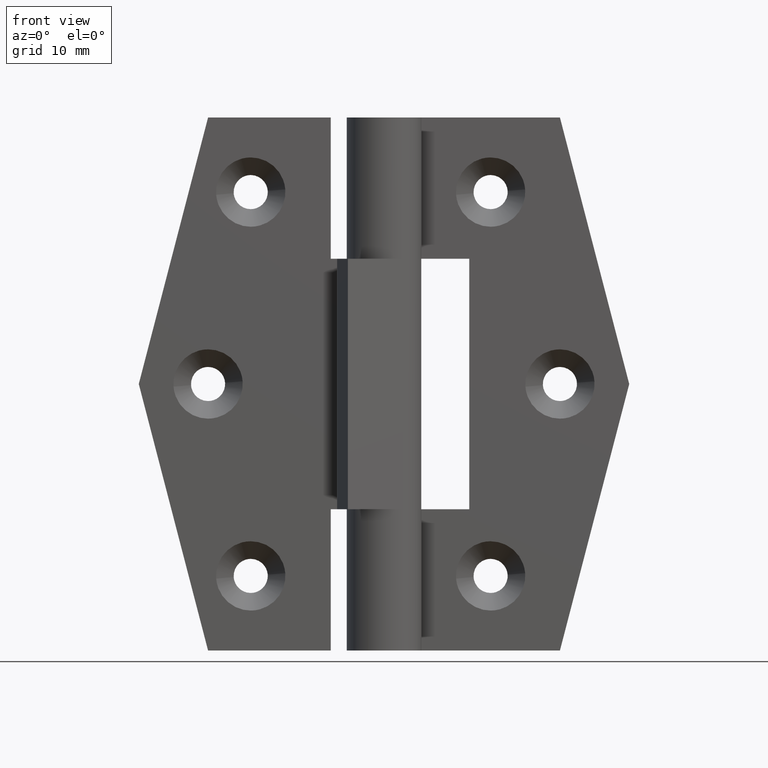
[diagram: clean part render]
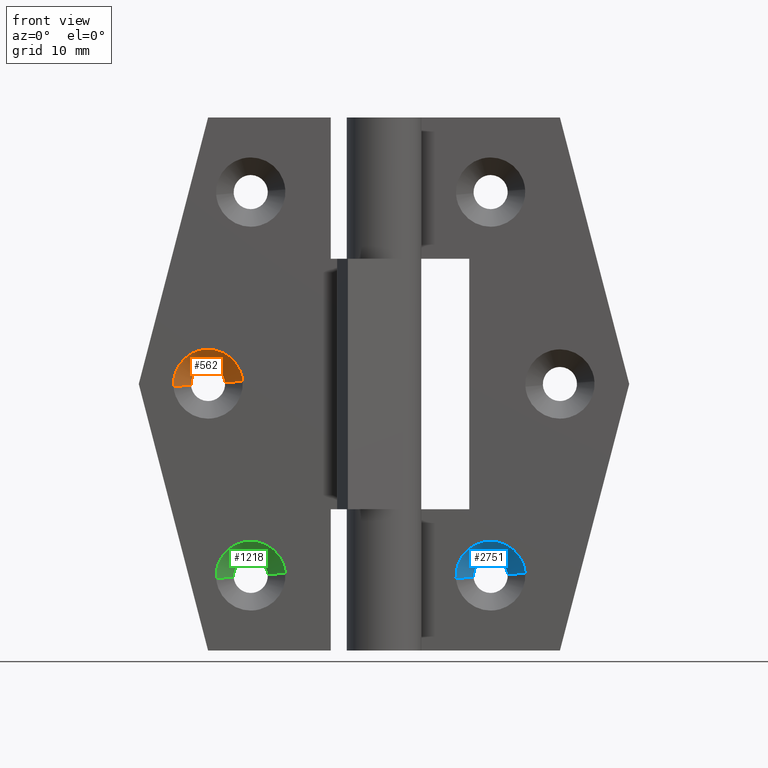
[diagram: same view with three faces highlighted in distinct colors, each labeled with its STEP entity id]
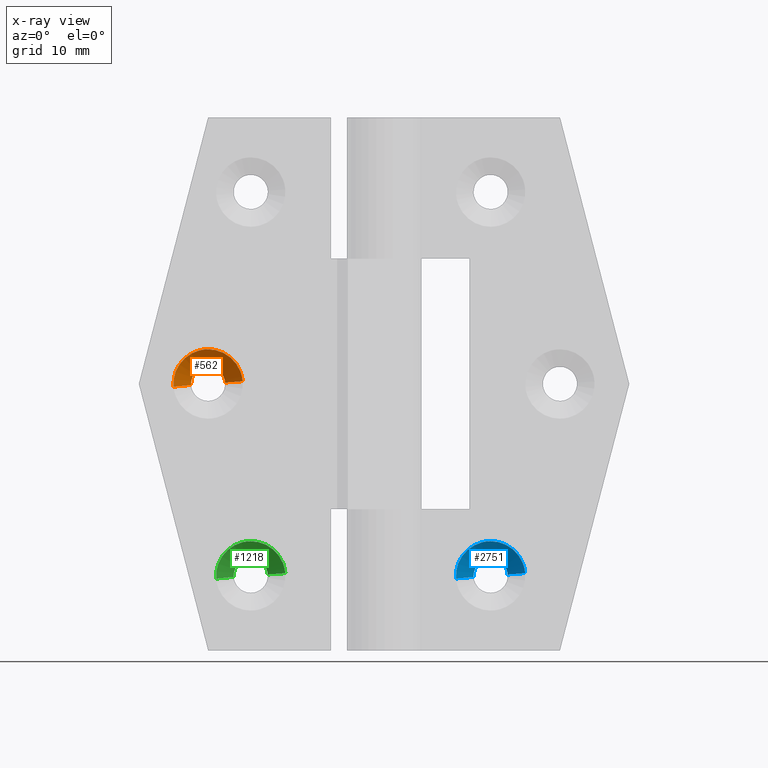
[diagram: x-ray of the same camera — body ghosted, the three highlighted faces saturated]
A machine part, front view with three faces highlighted in distinct colors.
The next image is the same camera in x-ray (body ghosted, the three faces saturated) — at least one of them is partly hidden behind the body in this view.
Their STEP definitions:

[orange] entity #562 — the highlighted face is a freeform B-spline surface patch.
#367=CARTESIAN_POINT('',(-18.097015689712361,3.149999999990524,24.902322536823871));
#368=VERTEX_POINT('',#367);
#412=CARTESIAN_POINT('',(-14.904932265990700,3.149999999909211,25.125534553860529));
#413=VERTEX_POINT('',#412);
#429=CARTESIAN_POINT('',(-16.500000000000000,3.150000000000000,26.600000000000001));
#430=VERTEX_POINT('',#429);
#431=CARTESIAN_POINT('',(-16.500000000000000,3.150000000000000,26.600000000000001));
#432=CARTESIAN_POINT('',(-15.020975214628303,3.149999999999999,26.599999999999991));
#433=CARTESIAN_POINT('',(-14.904932265990702,3.149999999909211,25.125534553860525));
#441=(BOUNDED_CURVE()B_SPLINE_CURVE(2,(#431,#432,#433),.UNSPECIFIED.,.F.,.U.)B_SPLINE_CURVE_WITH_KNOTS((3,3),(0.0,0.236331300484702),.UNSPECIFIED.)CURVE()GEOMETRIC_REPRESENTATION_ITEM()RATIONAL_B_SPLINE_CURVE((1.0,0.723120658778665,0.969723355862816))REPRESENTATION_ITEM(''));
#442=EDGE_CURVE('',#430,#413,#441,.T.);
#444=CARTESIAN_POINT('',(-18.097015689712354,3.149999999990525,24.902322536823871));
#445=CARTESIAN_POINT('',(-18.100000000000005,3.150000000000000,24.951115679042580));
#446=CARTESIAN_POINT('',(-18.100000000000001,3.150000000000000,25.0));
#447=CARTESIAN_POINT('',(-18.099999999999998,3.149999999999999,26.599999999999991));
#448=CARTESIAN_POINT('',(-16.500000000000000,3.150000000000000,26.600000000000001));
#456=(BOUNDED_CURVE()B_SPLINE_CURVE(2,(#444,#445,#446,#447,#448),.UNSPECIFIED.,.F.,.U.)B_SPLINE_CURVE_WITH_KNOTS((3,2,3),(0.739332983859227,0.750000000000000,1.0),.UNSPECIFIED.)CURVE()GEOMETRIC_REPRESENTATION_ITEM()RATIONAL_B_SPLINE_CURVE((0.976072088003107,0.987502813229576,1.0,0.707106781186548,1.0))REPRESENTATION_ITEM(''));
#457=EDGE_CURVE('',#368,#430,#456,.T.);
#496=CARTESIAN_POINT('',(-14.946055106043490,3.191250000000001,25.122298115465782));
#497=CARTESIAN_POINT('',(-15.068353221509263,3.191250000000000,26.676243009422294));
#498=CARTESIAN_POINT('',(-16.622298115465782,3.191250000000001,26.553944893956508));
#499=CARTESIAN_POINT('',(-18.176243009422286,3.191250000000000,26.431646778490727));
#500=CARTESIAN_POINT('',(-18.053944893956508,3.191250000000001,24.877701884534218));
#501=CARTESIAN_POINT('',(-13.217867754350429,1.457718750000000,25.258309409756741));
#502=CARTESIAN_POINT('',(-13.476177164107176,1.457718750000000,28.540441655406315));
#503=CARTESIAN_POINT('',(-16.758309409756741,1.457718750000000,28.282132245649571));
#504=CARTESIAN_POINT('',(-20.040441655406305,1.457718750000000,28.023822835892819));
#505=CARTESIAN_POINT('',(-19.782132245649571,1.457718750000000,24.741690590243259));
#513=(BOUNDED_SURFACE()B_SPLINE_SURFACE(2,1,((#496,#501),(#497,#502),(#498,#503),(#499,#504),(#500,#505)),.UNSPECIFIED.,.F.,.F.,.U.)B_SPLINE_SURFACE_WITH_KNOTS((3,2,3),(2,2),(0.0,5.454830179586582,10.909660359173159),(0.0,2.451583404547586),.UNSPECIFIED.)GEOMETRIC_REPRESENTATION_ITEM()RATIONAL_B_SPLINE_SURFACE(((1.0,1.0),(0.707106781186548,0.707106781186548),(1.0,1.0),(0.707106781186548,0.707106781186548),(1.0,1.0)))REPRESENTATION_ITEM('')SURFACE());
#514=ORIENTED_EDGE('',*,*,#442,.T.);
#515=CARTESIAN_POINT('',(-13.260018665359871,1.499999999981075,25.254992061261849));
#516=VERTEX_POINT('',#515);
#517=CARTESIAN_POINT('',(-14.904932265990700,3.149999999909211,25.125534553860529));
#518=CARTESIAN_POINT('',(-13.260018665359871,1.499999999981075,25.254992061261849));
#519=QUASI_UNIFORM_CURVE('',1,(#517,#518),.UNSPECIFIED.,.F.,.U.);
#520=EDGE_CURVE('',#413,#516,#519,.T.);
#521=ORIENTED_EDGE('',*,*,#520,.T.);
#522=CARTESIAN_POINT('',(-16.500000000000000,1.500000000000000,28.250000000000000));
#523=VERTEX_POINT('',#522);
#524=CARTESIAN_POINT('',(-16.500000000000000,1.500000000000000,28.250000000000000));
#525=CARTESIAN_POINT('',(-13.495730902380316,1.500000000000001,28.250000000000004));
#526=CARTESIAN_POINT('',(-13.260018665359867,1.499999999981075,25.254992061261849));
#534=(BOUNDED_CURVE()B_SPLINE_CURVE(2,(#524,#525,#526),.UNSPECIFIED.,.F.,.U.)B_SPLINE_CURVE_WITH_KNOTS((3,3),(0.0,0.236331300617437),.UNSPECIFIED.)CURVE()GEOMETRIC_REPRESENTATION_ITEM()RATIONAL_B_SPLINE_CURVE((1.0,0.723120658623156,0.969723356139824))REPRESENTATION_ITEM(''));
#535=EDGE_CURVE('',#523,#516,#534,.T.);
#536=ORIENTED_EDGE('',*,*,#535,.F.);
#537=CARTESIAN_POINT('',(-19.739981334640131,1.499999999981074,24.745007938738159));
#538=VERTEX_POINT('',#537);
#539=CARTESIAN_POINT('',(-19.739981334640134,1.499999999981074,24.745007938738151));
#540=CARTESIAN_POINT('',(-19.750000000000000,1.500000000000000,24.872307152079536));
#541=CARTESIAN_POINT('',(-19.750000000000000,1.500000000000000,25.0));
#542=CARTESIAN_POINT('',(-19.749999999999996,1.500000000000000,28.250000000000004));
#543=CARTESIAN_POINT('',(-16.500000000000000,1.500000000000000,28.250000000000000));
#551=(BOUNDED_CURVE()B_SPLINE_CURVE(2,(#539,#540,#541,#542,#543),.UNSPECIFIED.,.F.,.U.)B_SPLINE_CURVE_WITH_KNOTS((3,2,3),(0.736331300617438,0.750000000000000,1.0),.UNSPECIFIED.)CURVE()GEOMETRIC_REPRESENTATION_ITEM()RATIONAL_B_SPLINE_CURVE((0.969723356139824,0.983986122563391,1.0,0.707106781186547,1.0))REPRESENTATION_ITEM(''));
#552=EDGE_CURVE('',#538,#523,#551,.T.);
#553=ORIENTED_EDGE('',*,*,#552,.F.);
#554=CARTESIAN_POINT('',(-18.097015689712361,3.149999999990524,24.902322536823871));
#555=CARTESIAN_POINT('',(-19.739981334640131,1.499999999981074,24.745007938738159));
#556=QUASI_UNIFORM_CURVE('',1,(#554,#555),.UNSPECIFIED.,.F.,.U.);
#557=EDGE_CURVE('',#368,#538,#556,.T.);
#558=ORIENTED_EDGE('',*,*,#557,.F.);
#559=ORIENTED_EDGE('',*,*,#457,.T.);
#560=EDGE_LOOP('',(#514,#521,#536,#553,#558,#559));
#561=FACE_OUTER_BOUND('',#560,.T.);
#562=ADVANCED_FACE('',(#561),#513,.F.);

[blue] entity #2751 — the highlighted face is a freeform B-spline surface patch.
#2556=CARTESIAN_POINT('',(8.402984310287442,3.149999999990524,6.902322536823871));
#2557=VERTEX_POINT('',#2556);
#2601=CARTESIAN_POINT('',(11.595067734009101,3.149999999909213,7.125534553860532));
#2602=VERTEX_POINT('',#2601);
#2618=CARTESIAN_POINT('',(9.999999999999799,3.150000000000000,8.600000000000000));
#2619=VERTEX_POINT('',#2618);
#2620=CARTESIAN_POINT('',(9.999999999999799,3.150000000000000,8.600000000000000));
#2621=CARTESIAN_POINT('',(11.479024785371498,3.150000000000000,8.600000000000001));
#2622=CARTESIAN_POINT('',(11.595067734009099,3.149999999909213,7.125534553860532));
#2630=(BOUNDED_CURVE()B_SPLINE_CURVE(2,(#2620,#2621,#2622),.UNSPECIFIED.,.F.,.U.)B_SPLINE_CURVE_WITH_KNOTS((3,3),(0.0,0.236331300484702),.UNSPECIFIED.)CURVE()GEOMETRIC_REPRESENTATION_ITEM()RATIONAL_B_SPLINE_CURVE((1.0,0.723120658778666,0.969723355862815))REPRESENTATION_ITEM(''));
#2631=EDGE_CURVE('',#2619,#2602,#2630,.T.);
#2633=CARTESIAN_POINT('',(8.402984310287442,3.149999999990524,6.902322536823871));
#2634=CARTESIAN_POINT('',(8.399999999999798,3.150000000000000,6.951115679042579));
#2635=CARTESIAN_POINT('',(8.399999999999798,3.150000000000000,7.0));
#2636=CARTESIAN_POINT('',(8.399999999999800,3.149999999999999,8.600000000000000));
#2637=CARTESIAN_POINT('',(9.999999999999799,3.150000000000000,8.600000000000000));
#2645=(BOUNDED_CURVE()B_SPLINE_CURVE(2,(#2633,#2634,#2635,#2636,#2637),.UNSPECIFIED.,.F.,.U.)B_SPLINE_CURVE_WITH_KNOTS((3,2,3),(0.739332983859227,0.750000000000000,1.0),.UNSPECIFIED.)CURVE()GEOMETRIC_REPRESENTATION_ITEM()RATIONAL_B_SPLINE_CURVE((0.976072088003106,0.987502813229575,1.0,0.707106781186548,1.0))REPRESENTATION_ITEM(''));
#2646=EDGE_CURVE('',#2557,#2619,#2645,.T.);
#2685=CARTESIAN_POINT('',(11.553944893956320,3.191250000000001,7.122298115465780));
#2686=CARTESIAN_POINT('',(11.431646778490538,3.191250000000000,8.676243009422299));
#2687=CARTESIAN_POINT('',(9.877701884534019,3.191250000000001,8.553944893956519));
#2688=CARTESIAN_POINT('',(8.323756990577500,3.191250000000000,8.431646778490739));
#2689=CARTESIAN_POINT('',(8.446055106043280,3.191250000000001,6.877701884534220));
#2690=CARTESIAN_POINT('',(13.282132245649370,1.457718750000000,7.258309409756741));
#2691=CARTESIAN_POINT('',(13.023822835892627,1.457718750000000,10.540441655406308));
#2692=CARTESIAN_POINT('',(9.741690590243058,1.457718750000000,10.282132245649571));
#2693=CARTESIAN_POINT('',(6.459558344593490,1.457718750000000,10.023822835892826));
#2694=CARTESIAN_POINT('',(6.717867754350231,1.457718750000000,6.741690590243259));
#2702=(BOUNDED_SURFACE()B_SPLINE_SURFACE(2,1,((#2685,#2690),(#2686,#2691),(#2687,#2692),(#2688,#2693),(#2689,#2694)),.UNSPECIFIED.,.F.,.F.,.U.)B_SPLINE_SURFACE_WITH_KNOTS((3,2,3),(2,2),(0.0,5.454830179586582,10.909660359173170),(0.0,2.451583404547581),.UNSPECIFIED.)GEOMETRIC_REPRESENTATION_ITEM()RATIONAL_B_SPLINE_SURFACE(((1.0,1.0),(0.707106781186548,0.707106781186548),(1.0,1.0),(0.707106781186548,0.707106781186548),(1.0,1.0)))REPRESENTATION_ITEM('')SURFACE());
#2703=ORIENTED_EDGE('',*,*,#2631,.T.);
#2704=CARTESIAN_POINT('',(13.239981334639930,1.499999999981076,7.254992061261847));
#2705=VERTEX_POINT('',#2704);
#2706=CARTESIAN_POINT('',(11.595067734009101,3.149999999909213,7.125534553860532));
#2707=CARTESIAN_POINT('',(13.239981334639930,1.499999999981076,7.254992061261847));
#2708=QUASI_UNIFORM_CURVE('',1,(#2706,#2707),.UNSPECIFIED.,.F.,.U.);
#2709=EDGE_CURVE('',#2602,#2705,#2708,.T.);
#2710=ORIENTED_EDGE('',*,*,#2709,.T.);
#2711=CARTESIAN_POINT('',(9.999999999999799,1.500000000000000,10.250000000000000));
#2712=VERTEX_POINT('',#2711);
#2713=CARTESIAN_POINT('',(9.999999999999799,1.500000000000000,10.250000000000000));
#2714=CARTESIAN_POINT('',(13.004269097619488,1.500000000000000,10.250000000000000));
#2715=CARTESIAN_POINT('',(13.239981334639934,1.499999999981075,7.254992061261847));
#2723=(BOUNDED_CURVE()B_SPLINE_CURVE(2,(#2713,#2714,#2715),.UNSPECIFIED.,.F.,.U.)B_SPLINE_CURVE_WITH_KNOTS((3,3),(0.0,0.236331300617438),.UNSPECIFIED.)CURVE()GEOMETRIC_REPRESENTATION_ITEM()RATIONAL_B_SPLINE_CURVE((1.0,0.723120658623156,0.969723356139825))REPRESENTATION_ITEM(''));
#2724=EDGE_CURVE('',#2712,#2705,#2723,.T.);
#2725=ORIENTED_EDGE('',*,*,#2724,.F.);
#2726=CARTESIAN_POINT('',(6.760018665359668,1.499999999981075,6.745007938738153));
#2727=VERTEX_POINT('',#2726);
#2728=CARTESIAN_POINT('',(6.760018665359668,1.499999999981075,6.745007938738154));
#2729=CARTESIAN_POINT('',(6.749999999999799,1.500000000000000,6.872307152079536));
#2730=CARTESIAN_POINT('',(6.749999999999799,1.500000000000000,7.0));
#2731=CARTESIAN_POINT('',(6.749999999999800,1.500000000000000,10.250000000000000));
#2732=CARTESIAN_POINT('',(9.999999999999799,1.500000000000000,10.250000000000000));
#2740=(BOUNDED_CURVE()B_SPLINE_CURVE(2,(#2728,#2729,#2730,#2731,#2732),.UNSPECIFIED.,.F.,.U.)B_SPLINE_CURVE_WITH_KNOTS((3,2,3),(0.736331300617437,0.750000000000000,1.0),.UNSPECIFIED.)CURVE()GEOMETRIC_REPRESENTATION_ITEM()RATIONAL_B_SPLINE_CURVE((0.969723356139824,0.983986122563391,1.0,0.707106781186547,1.0))REPRESENTATION_ITEM(''));
#2741=EDGE_CURVE('',#2727,#2712,#2740,.T.);
#2742=ORIENTED_EDGE('',*,*,#2741,.F.);
#2743=CARTESIAN_POINT('',(8.402984310287442,3.149999999990524,6.902322536823871));
#2744=CARTESIAN_POINT('',(6.760018665359668,1.499999999981075,6.745007938738153));
#2745=QUASI_UNIFORM_CURVE('',1,(#2743,#2744),.UNSPECIFIED.,.F.,.U.);
#2746=EDGE_CURVE('',#2557,#2727,#2745,.T.);
#2747=ORIENTED_EDGE('',*,*,#2746,.F.);
#2748=ORIENTED_EDGE('',*,*,#2646,.T.);
#2749=EDGE_LOOP('',(#2703,#2710,#2725,#2742,#2747,#2748));
#2750=FACE_OUTER_BOUND('',#2749,.T.);
#2751=ADVANCED_FACE('',(#2750),#2702,.F.);

[green] entity #1218 — the highlighted face is a freeform B-spline surface patch.
#1023=CARTESIAN_POINT('',(-14.097015689712361,3.149999999990524,6.902322536823871));
#1024=VERTEX_POINT('',#1023);
#1068=CARTESIAN_POINT('',(-10.904932265990700,3.149999999909211,7.125534553860533));
#1069=VERTEX_POINT('',#1068);
#1085=CARTESIAN_POINT('',(-12.500000000000000,3.150000000000000,8.600000000000000));
#1086=VERTEX_POINT('',#1085);
#1087=CARTESIAN_POINT('',(-12.500000000000000,3.150000000000000,8.600000000000000));
#1088=CARTESIAN_POINT('',(-11.020975214628301,3.150000000000000,8.600000000000000));
#1089=CARTESIAN_POINT('',(-10.904932265990697,3.149999999909211,7.125534553860533));
#1097=(BOUNDED_CURVE()B_SPLINE_CURVE(2,(#1087,#1088,#1089),.UNSPECIFIED.,.F.,.U.)B_SPLINE_CURVE_WITH_KNOTS((3,3),(0.0,0.236331300484702),.UNSPECIFIED.)CURVE()GEOMETRIC_REPRESENTATION_ITEM()RATIONAL_B_SPLINE_CURVE((1.0,0.723120658778666,0.969723355862815))REPRESENTATION_ITEM(''));
#1098=EDGE_CURVE('',#1086,#1069,#1097,.T.);
#1100=CARTESIAN_POINT('',(-14.097015689712354,3.149999999990524,6.902322536823871));
#1101=CARTESIAN_POINT('',(-14.099999999999998,3.150000000000000,6.951115679042579));
#1102=CARTESIAN_POINT('',(-14.100000000000000,3.150000000000000,7.0));
#1103=CARTESIAN_POINT('',(-14.100000000000001,3.149999999999999,8.600000000000000));
#1104=CARTESIAN_POINT('',(-12.500000000000000,3.150000000000000,8.600000000000000));
#1112=(BOUNDED_CURVE()B_SPLINE_CURVE(2,(#1100,#1101,#1102,#1103,#1104),.UNSPECIFIED.,.F.,.U.)B_SPLINE_CURVE_WITH_KNOTS((3,2,3),(0.739332983859227,0.750000000000000,1.0),.UNSPECIFIED.)CURVE()GEOMETRIC_REPRESENTATION_ITEM()RATIONAL_B_SPLINE_CURVE((0.976072088003106,0.987502813229575,1.0,0.707106781186548,1.0))REPRESENTATION_ITEM(''));
#1113=EDGE_CURVE('',#1024,#1086,#1112,.T.);
#1152=CARTESIAN_POINT('',(-10.946055106043490,3.191250000000001,7.122298115465779));
#1153=CARTESIAN_POINT('',(-11.068353221509268,3.191250000000000,8.676243009422290));
#1154=CARTESIAN_POINT('',(-12.622298115465780,3.191250000000001,8.553944893956512));
#1155=CARTESIAN_POINT('',(-14.176243009422286,3.191250000000000,8.431646778490734));
#1156=CARTESIAN_POINT('',(-14.053944893956510,3.191250000000001,6.877701884534221));
#1157=CARTESIAN_POINT('',(-9.217867754350433,1.457718750000000,7.258309409756741));
#1158=CARTESIAN_POINT('',(-9.476177164107174,1.457718750000000,10.540441655406308));
#1159=CARTESIAN_POINT('',(-12.758309409756739,1.457718750000000,10.282132245649571));
#1160=CARTESIAN_POINT('',(-16.040441655406308,1.457718750000000,10.023822835892826));
#1161=CARTESIAN_POINT('',(-15.782132245649571,1.457718750000000,6.741690590243259));
#1169=(BOUNDED_SURFACE()B_SPLINE_SURFACE(2,1,((#1152,#1157),(#1153,#1158),(#1154,#1159),(#1155,#1160),(#1156,#1161)),.UNSPECIFIED.,.F.,.F.,.U.)B_SPLINE_SURFACE_WITH_KNOTS((3,2,3),(2,2),(0.0,5.454830179586582,10.909660359173159),(0.0,2.451583404547584),.UNSPECIFIED.)GEOMETRIC_REPRESENTATION_ITEM()RATIONAL_B_SPLINE_SURFACE(((1.0,1.0),(0.707106781186548,0.707106781186548),(1.0,1.0),(0.707106781186548,0.707106781186548),(1.0,1.0)))REPRESENTATION_ITEM('')SURFACE());
#1170=ORIENTED_EDGE('',*,*,#1098,.T.);
#1171=CARTESIAN_POINT('',(-9.260018665359873,1.499999999981076,7.254992061261847));
#1172=VERTEX_POINT('',#1171);
#1173=CARTESIAN_POINT('',(-10.904932265990700,3.149999999909211,7.125534553860533));
#1174=CARTESIAN_POINT('',(-9.260018665359873,1.499999999981076,7.254992061261847));
#1175=QUASI_UNIFORM_CURVE('',1,(#1173,#1174),.UNSPECIFIED.,.F.,.U.);
#1176=EDGE_CURVE('',#1069,#1172,#1175,.T.);
#1177=ORIENTED_EDGE('',*,*,#1176,.T.);
#1178=CARTESIAN_POINT('',(-12.500000000000000,1.500000000000000,10.250000000000000));
#1179=VERTEX_POINT('',#1178);
#1180=CARTESIAN_POINT('',(-12.500000000000000,1.500000000000000,10.250000000000000));
#1181=CARTESIAN_POINT('',(-9.495730902380309,1.500000000000000,10.250000000000000));
#1182=CARTESIAN_POINT('',(-9.260018665359873,1.499999999981076,7.254992061261847));
#1190=(BOUNDED_CURVE()B_SPLINE_CURVE(2,(#1180,#1181,#1182),.UNSPECIFIED.,.F.,.U.)B_SPLINE_CURVE_WITH_KNOTS((3,3),(0.0,0.236331300617438),.UNSPECIFIED.)CURVE()GEOMETRIC_REPRESENTATION_ITEM()RATIONAL_B_SPLINE_CURVE((1.0,0.723120658623156,0.969723356139825))REPRESENTATION_ITEM(''));
#1191=EDGE_CURVE('',#1179,#1172,#1190,.T.);
#1192=ORIENTED_EDGE('',*,*,#1191,.F.);
#1193=CARTESIAN_POINT('',(-15.739981334640129,1.499999999981075,6.745007938738153));
#1194=VERTEX_POINT('',#1193);
#1195=CARTESIAN_POINT('',(-15.739981334640134,1.499999999981075,6.745007938738154));
#1196=CARTESIAN_POINT('',(-15.749999999999998,1.500000000000000,6.872307152079536));
#1197=CARTESIAN_POINT('',(-15.750000000000000,1.500000000000000,7.0));
#1198=CARTESIAN_POINT('',(-15.749999999999995,1.500000000000000,10.250000000000000));
#1199=CARTESIAN_POINT('',(-12.500000000000000,1.500000000000000,10.250000000000000));
#1207=(BOUNDED_CURVE()B_SPLINE_CURVE(2,(#1195,#1196,#1197,#1198,#1199),.UNSPECIFIED.,.F.,.U.)B_SPLINE_CURVE_WITH_KNOTS((3,2,3),(0.736331300617437,0.750000000000000,1.0),.UNSPECIFIED.)CURVE()GEOMETRIC_REPRESENTATION_ITEM()RATIONAL_B_SPLINE_CURVE((0.969723356139824,0.983986122563391,1.0,0.707106781186547,1.0))REPRESENTATION_ITEM(''));
#1208=EDGE_CURVE('',#1194,#1179,#1207,.T.);
#1209=ORIENTED_EDGE('',*,*,#1208,.F.);
#1210=CARTESIAN_POINT('',(-14.097015689712361,3.149999999990524,6.902322536823871));
#1211=CARTESIAN_POINT('',(-15.739981334640129,1.499999999981075,6.745007938738153));
#1212=QUASI_UNIFORM_CURVE('',1,(#1210,#1211),.UNSPECIFIED.,.F.,.U.);
#1213=EDGE_CURVE('',#1024,#1194,#1212,.T.);
#1214=ORIENTED_EDGE('',*,*,#1213,.F.);
#1215=ORIENTED_EDGE('',*,*,#1113,.T.);
#1216=EDGE_LOOP('',(#1170,#1177,#1192,#1209,#1214,#1215));
#1217=FACE_OUTER_BOUND('',#1216,.T.);
#1218=ADVANCED_FACE('',(#1217),#1169,.F.);